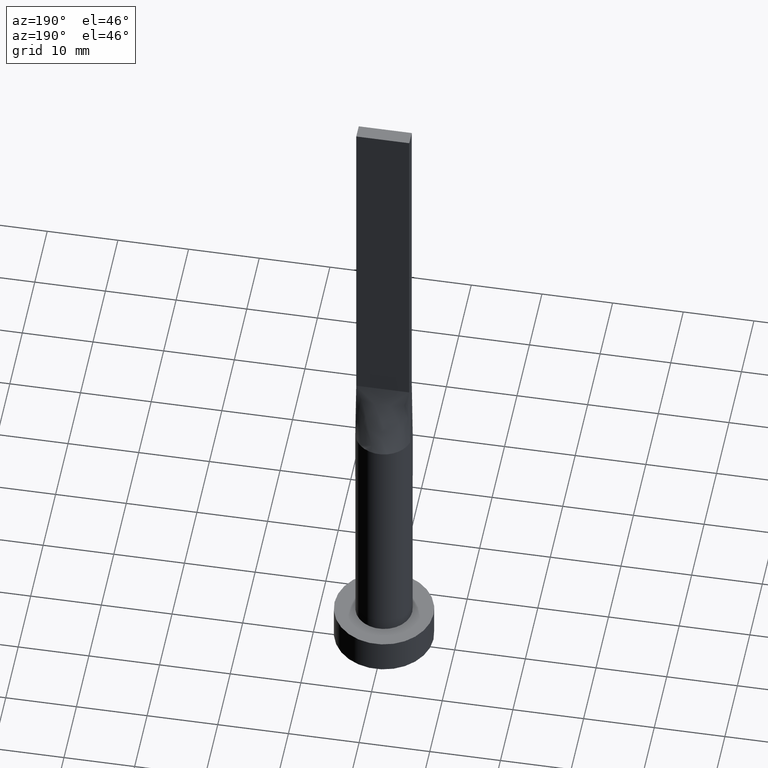
[diagram: clean part render]
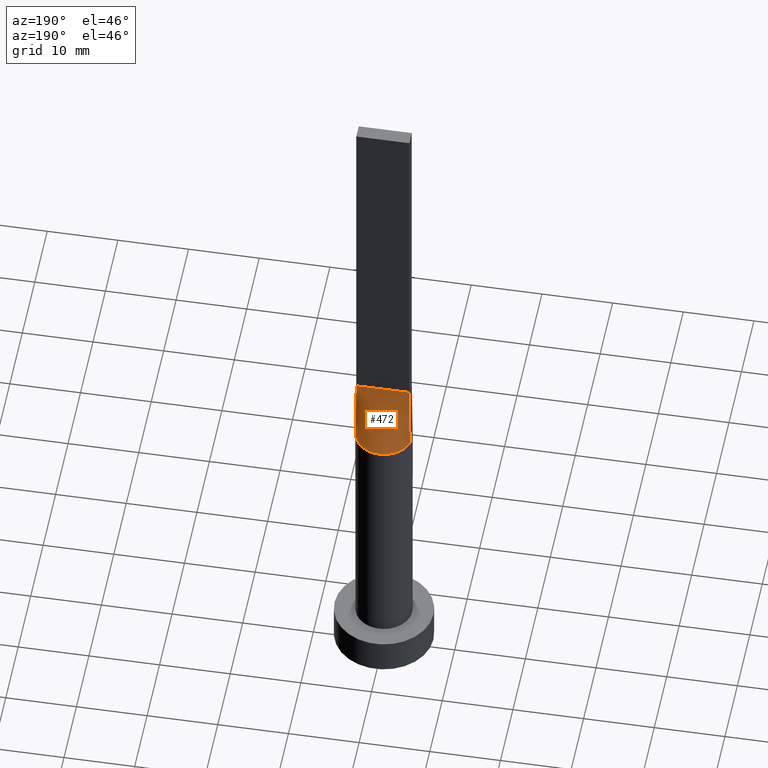
[diagram: same view with one face highlighted and labeled with its STEP entity id]
A machine part, auxiliary view. The second image highlights one B-rep face of the part: STEP entity #472.
In plain terms, the highlighted face is a freeform B-spline surface patch.
Its self-contained STEP definition (entity closure, byte-faithful):
#4 = ORIENTED_EDGE ( 'NONE', *, *, #46, .F. ) ;
#8 = VERTEX_POINT ( 'NONE', #10 ) ;
#10 = CARTESIAN_POINT ( 'NONE',  ( 3.750000000000000000, 1.000000000000000000, 50.00000000000000000 ) ) ;
#14 = CARTESIAN_POINT ( 'NONE',  ( 1.249999999999999334, 1.000000000000000000, 50.00000000000000711 ) ) ;
#17 = CARTESIAN_POINT ( 'NONE',  ( -3.125000000000000000, 1.000000000000000000, 50.00000000000000000 ) ) ;
#20 = CARTESIAN_POINT ( 'NONE',  ( -1.250000000000000444, 1.000000000000000000, 50.00000000000000000 ) ) ;
#26 = CARTESIAN_POINT ( 'NONE',  ( 3.865212754195084699, 1.030724393897464841, 40.00000000000000000 ) ) ;
#29 = CARTESIAN_POINT ( 'NONE',  ( 1.940702937457743582, 3.532374760555930582, 40.00000000000000000 ) ) ;
#46 = EDGE_CURVE ( 'NONE', #8, #281, #371, .T. ) ;
#63 = CARTESIAN_POINT ( 'NONE',  ( 3.267840578657193795, 2.338604872288698289, 40.00000000000000000 ) ) ;
#68 = CARTESIAN_POINT ( 'NONE',  ( -3.009488128496037529, 2.672487015486668671, 39.99999999999998579 ) ) ;
#71 = FACE_OUTER_BOUND ( 'NONE', #216, .T. ) ;
#76 = CARTESIAN_POINT ( 'NONE',  ( 3.124999999999999112, 1.000000000000000000, 50.00000000000000000 ) ) ;
#80 = CARTESIAN_POINT ( 'NONE',  ( 1.023074425454087999, 3.898373771260456255, 40.00000000000000000 ) ) ;
#81 = CARTESIAN_POINT ( 'NONE',  ( -3.009488128496037529, 2.672487015486668671, 39.99999999999998579 ) ) ;
#91 = CARTESIAN_POINT ( 'NONE',  ( -3.781952206537765537, 1.341853921743403788, 40.00000000000000000 ) ) ;
#93 = VECTOR ( 'NONE', #146, 1000.000000000000000 ) ;
#110 = CARTESIAN_POINT ( 'NONE',  ( 3.781952206537764205, 1.341853921743403788, 39.99999999999999289 ) ) ;
#116 = CARTESIAN_POINT ( 'NONE',  ( 3.865212754195084699, 1.030724393897464841, 40.00000000000000000 ) ) ;
#124 = CARTESIAN_POINT ( 'NONE',  ( -0.5121855420560009753, 4.000000000000000888, 40.00000000000000000 ) ) ;
#142 = LINE ( 'NONE', #455, #369 ) ;
#146 = DIRECTION ( 'NONE',  ( -1.000000000000000000, -0.000000000000000000, -0.000000000000000000 ) ) ;
#150 = EDGE_CURVE ( 'NONE', #431, #563, #581, .T. ) ;
#152 = CARTESIAN_POINT ( 'NONE',  ( -1.023074425454088221, 3.898373771260455811, 40.00000000000000000 ) ) ;
#155 = CARTESIAN_POINT ( 'NONE',  ( -2.346407003458401253, 3.270103945996944095, 40.00000000000000000 ) ) ;
#169 = CARTESIAN_POINT ( 'NONE',  ( -1.023074425454088221, 3.898373771260455811, 40.00000000000000000 ) ) ;
#178 = CARTESIAN_POINT ( 'NONE',  ( 3.807469879202492358, 1.015325301120664436, 45.00000000000000000 ) ) ;
#194 = CARTESIAN_POINT ( 'NONE',  ( -0.6250000000000006661, 1.000000000000000000, 50.00000000000000000 ) ) ;
#197 = CARTESIAN_POINT ( 'NONE',  ( -3.267840578657194239, 2.338604872288698289, 40.00000000000000711 ) ) ;
#216 = EDGE_LOOP ( 'NONE', ( #533, #547, #4, #418 ) ) ;
#241 = CARTESIAN_POINT ( 'NONE',  ( 2.187499999999999556, 1.000000000000000000, 50.00000000000000000 ) ) ;
#245 = CARTESIAN_POINT ( 'NONE',  ( -2.187500000000000444, 1.000000000000000000, 50.00000000000000000 ) ) ;
#249 = CARTESIAN_POINT ( 'NONE',  ( 0.5121855420560009753, 4.000000000000000888, 40.00000000000000000 ) ) ;
#256 = CARTESIAN_POINT ( 'NONE',  ( 3.009488128496037085, 2.672487015486669115, 40.00000000000000000 ) ) ;
#257 = CARTESIAN_POINT ( 'NONE',  ( -0.5121855420560009753, 4.000000000000000888, 40.00000000000000000 ) ) ;
#260 = CARTESIAN_POINT ( 'NONE',  ( -3.750000000000000000, 1.000000000000000000, 50.00000000000000000 ) ) ;
#277 = CARTESIAN_POINT ( 'NONE',  ( -3.750000000000000000, 1.000000000000000000, 50.00000000000000000 ) ) ;
#281 = VERTEX_POINT ( 'NONE', #277 ) ;
#291 = CARTESIAN_POINT ( 'NONE',  ( -1.562500000000000444, 1.000000000000000000, 50.00000000000000000 ) ) ;
#294 = CARTESIAN_POINT ( 'NONE',  ( 3.437499999999999556, 1.000000000000000000, 50.00000000000000000 ) ) ;
#296 = CARTESIAN_POINT ( 'NONE',  ( 3.653499896451231521, 1.673258289339057958, 40.00000000000001421 ) ) ;
#297 = CARTESIAN_POINT ( 'NONE',  ( 3.864939758404985160, 1.030650602241329539, 40.00000000000000000 ) ) ;
#302 = CARTESIAN_POINT ( 'NONE',  ( 2.346407003458400808, 3.270103945996944983, 40.00000000000000000 ) ) ;
#305 = CARTESIAN_POINT ( 'NONE',  ( -3.267840578657194239, 2.338604872288698289, 40.00000000000000711 ) ) ;
#315 = LINE ( 'NONE', #178, #545 ) ;
#322 = DIRECTION ( 'NONE',  ( 0.01149316269309399834, -0.003064843384824949939, 0.9999292544707033548 ) ) ;
#334 = CARTESIAN_POINT ( 'NONE',  ( 0.3124999999999993339, 1.000000000000000000, 50.00000000000000711 ) ) ;
#335 = B_SPLINE_SURFACE_WITH_KNOTS ( 'NONE', 3, 1, ( 
 ( #297, #347 ),
 ( #110, #294 ),
 ( #474, #76 ),
 ( #63, #519 ),
 ( #468, #241 ),
 ( #302, #477 ),
 ( #29, #14 ),
 ( #80, #548 ),
 ( #249, #334 ),
 ( #257, #438 ),
 ( #152, #194 ),
 ( #550, #20 ),
 ( #155, #291 ),
 ( #68, #245 ),
 ( #197, #428 ),
 ( #430, #17 ),
 ( #385, #553 ),
 ( #471, #260 ) ),
 .UNSPECIFIED., .F., .F., .F.,
 ( 4, 2, 2, 2, 2, 2, 2, 2, 4 ),
 ( 2, 2 ),
 ( 0.000000000000000000, 0.1250000000000000000, 0.2500000000000000000, 0.3750000000000000000, 0.5000000000000000000, 0.6250000000000000000, 0.7500000000000000000, 0.8750000000000000000, 1.000000000000000000 ),
 ( 0.000000000000000000, 1.000000000000000000 ),
 .UNSPECIFIED. ) ;
#343 = EDGE_CURVE ( 'NONE', #563, #281, #142, .T. ) ;
#347 = CARTESIAN_POINT ( 'NONE',  ( 3.750000000000000000, 1.000000000000000000, 50.00000000000000000 ) ) ;
#369 = VECTOR ( 'NONE', #322, 1000.000000000000114 ) ;
#371 = LINE ( 'NONE', #539, #93 ) ;
#384 = CARTESIAN_POINT ( 'NONE',  ( 3.781952206537764205, 1.341853921743403788, 39.99999999999999289 ) ) ;
#385 = CARTESIAN_POINT ( 'NONE',  ( -3.781952206537765537, 1.341853921743403788, 40.00000000000000000 ) ) ;
#397 = CARTESIAN_POINT ( 'NONE',  ( 0.5121855420560009753, 4.000000000000000888, 40.00000000000000000 ) ) ;
#418 = ORIENTED_EDGE ( 'NONE', *, *, #542, .F. ) ;
#428 = CARTESIAN_POINT ( 'NONE',  ( -2.500000000000000444, 1.000000000000000000, 50.00000000000000000 ) ) ;
#430 = CARTESIAN_POINT ( 'NONE',  ( -3.653499896451231521, 1.673258289339058180, 40.00000000000001421 ) ) ;
#431 = VERTEX_POINT ( 'NONE', #26 ) ;
#438 = CARTESIAN_POINT ( 'NONE',  ( -0.3125000000000007216, 1.000000000000000000, 50.00000000000000711 ) ) ;
#439 = CARTESIAN_POINT ( 'NONE',  ( -3.653499896451231521, 1.673258289339058180, 40.00000000000001421 ) ) ;
#445 = CARTESIAN_POINT ( 'NONE',  ( -1.940702937457743138, 3.532374760555930582, 40.00000000000000000 ) ) ;
#451 = CARTESIAN_POINT ( 'NONE',  ( -2.346407003458401253, 3.270103945996944095, 40.00000000000000000 ) ) ;
#455 = CARTESIAN_POINT ( 'NONE',  ( -3.807469879202492802, 1.015325301120663992, 45.00000000000000000 ) ) ;
#468 = CARTESIAN_POINT ( 'NONE',  ( 3.009488128496037085, 2.672487015486669115, 40.00000000000000000 ) ) ;
#471 = CARTESIAN_POINT ( 'NONE',  ( -3.864939758404985604, 1.030650602241328428, 40.00000000000000000 ) ) ;
#472 = ADVANCED_FACE ( 'NONE', ( #71 ), #335, .T. ) ;
#473 = CARTESIAN_POINT ( 'NONE',  ( 3.267840578657193795, 2.338604872288698289, 40.00000000000000000 ) ) ;
#474 = CARTESIAN_POINT ( 'NONE',  ( 3.653499896451231521, 1.673258289339057958, 40.00000000000001421 ) ) ;
#477 = CARTESIAN_POINT ( 'NONE',  ( 1.562499999999999112, 1.000000000000000000, 50.00000000000000711 ) ) ;
#479 = CARTESIAN_POINT ( 'NONE',  ( 1.940702937457743582, 3.532374760555930582, 40.00000000000000000 ) ) ;
#519 = CARTESIAN_POINT ( 'NONE',  ( 2.499999999999999112, 1.000000000000000000, 50.00000000000000000 ) ) ;
#531 = CARTESIAN_POINT ( 'NONE',  ( -3.865236553917747120, 1.030730781768519622, 40.00000000000000000 ) ) ;
#533 = ORIENTED_EDGE ( 'NONE', *, *, #150, .T. ) ;
#539 = CARTESIAN_POINT ( 'NONE',  ( -3.750000000000000000, 1.000000000000000000, 50.00000000000000000 ) ) ;
#542 = EDGE_CURVE ( 'NONE', #431, #8, #315, .T. ) ;
#545 = VECTOR ( 'NONE', #562, 1000.000000000000114 ) ;
#547 = ORIENTED_EDGE ( 'NONE', *, *, #343, .T. ) ;
#548 = CARTESIAN_POINT ( 'NONE',  ( 0.6249999999999993339, 1.000000000000000000, 50.00000000000000711 ) ) ;
#550 = CARTESIAN_POINT ( 'NONE',  ( -1.940702937457743138, 3.532374760555930582, 40.00000000000000000 ) ) ;
#553 = CARTESIAN_POINT ( 'NONE',  ( -3.437500000000000000, 1.000000000000000000, 50.00000000000000000 ) ) ;
#562 = DIRECTION ( 'NONE',  ( -0.01149316269309395670, -0.003064843384824993307, 0.9999292544707033548 ) ) ;
#563 = VERTEX_POINT ( 'NONE', #576 ) ;
#565 = CARTESIAN_POINT ( 'NONE',  ( 2.346407003458400808, 3.270103945996944983, 40.00000000000000000 ) ) ;
#567 = CARTESIAN_POINT ( 'NONE',  ( 1.023074425454087999, 3.898373771260456255, 40.00000000000000000 ) ) ;
#576 = CARTESIAN_POINT ( 'NONE',  ( -3.865236553917747120, 1.030730781768519622, 40.00000000000000000 ) ) ;
#581 = B_SPLINE_CURVE_WITH_KNOTS ( 'NONE', 3,
 ( #116, #384, #296, #473, #256, #565, #479, #567, #397, #124, #169, #445, #451, #81, #305, #439, #91, #531 ),
 .UNSPECIFIED., .F., .F.,
 ( 4, 2, 2, 2, 2, 2, 2, 2, 4 ),
 ( 0.000000000000000000, 0.1250000000000000000, 0.2500000000000000000, 0.3750000000000000000, 0.5000000000000000000, 0.6250000000000000000, 0.7500000000000000000, 0.8750000000000000000, 1.000000000000000000 ),
 .UNSPECIFIED. ) ;